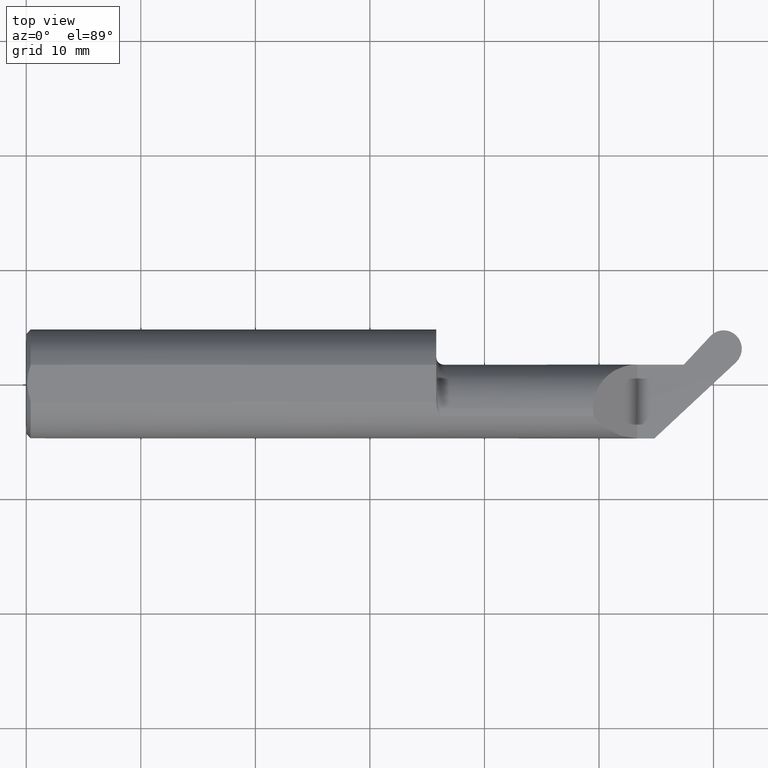
[diagram: clean part render]
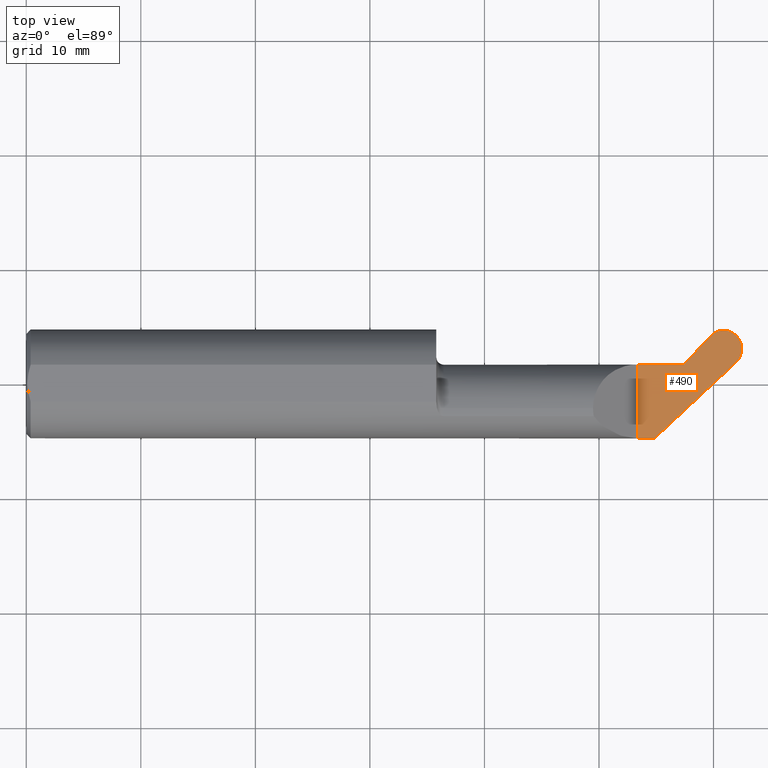
[diagram: same view with one face highlighted and labeled with its STEP entity id]
A machine part, top view. The second image highlights one B-rep face of the part: STEP entity #490.
In plain terms, the highlighted planar face has unit normal (-0, 0, -1).
Its self-contained STEP definition (entity closure, byte-faithful):
#5 = VERTEX_POINT ( 'NONE', #78 ) ;
#63 = EDGE_CURVE ( 'NONE', #293, #5, #909, .T. ) ;
#67 = VECTOR ( 'NONE', #587, 39.37007874015748143 ) ;
#78 = CARTESIAN_POINT ( 'NONE',  ( 2.351841361697363908, 0.1649863844224991882, -4.745349621061712245E-17 ) ) ;
#79 = LINE ( 'NONE', #517, #67 ) ;
#153 = CARTESIAN_POINT ( 'NONE',  ( 2.100000000000000089, 0.06665000000000036173, -4.745349621061712245E-17 ) ) ;
#176 = EDGE_CURVE ( 'NONE', #621, #694, #273, .T. ) ;
#199 = VECTOR ( 'NONE', #863, 39.37007874015748143 ) ;
#205 = CARTESIAN_POINT ( 'NONE',  ( 2.177075908381001401, -0.1705002072932669532, 0.000000000000000000 ) ) ;
#231 = ORIENTED_EDGE ( 'NONE', *, *, #902, .T. ) ;
#233 = CARTESIAN_POINT ( 'NONE',  ( 2.364542468186865420, 0.1761179121964334959, -4.745349621061712245E-17 ) ) ;
#246 = DIRECTION ( 'NONE',  ( -1.000000000000000000, 0.000000000000000000, 0.000000000000000000 ) ) ;
#247 = ORIENTED_EDGE ( 'NONE', *, *, #596, .F. ) ;
#273 = LINE ( 'NONE', #205, #559 ) ;
#280 = CARTESIAN_POINT ( 'NONE',  ( 2.380177281579272108, 0.1829292312331320391, -4.745349621061712245E-17 ) ) ;
#290 = DIRECTION ( 'NONE',  ( 1.000000000000000000, 0.000000000000000000, 0.000000000000000000 ) ) ;
#293 = VERTEX_POINT ( 'NONE', #800 ) ;
#318 = ORIENTED_EDGE ( 'NONE', *, *, #63, .F. ) ;
#324 = PLANE ( 'NONE',  #361 ) ;
#326 = B_SPLINE_CURVE_WITH_KNOTS ( 'NONE', 3,
 ( #488, #920, #571, #720, #787, #560, #852, #432, #415, #411, #484, #641, #705, #343, #280, #233, #519, #738 ),
 .UNSPECIFIED., .F., .F.,
 ( 4, 2, 2, 2, 2, 2, 2, 2, 4 ),
 ( 0.000000000000000000, 0.1250000000000000000, 0.2500000000000000000, 0.3750000000000000000, 0.5000000000000000000, 0.6250000000000000000, 0.7500000000000000000, 0.8750000000000000000, 1.000000000000000000 ),
 .UNSPECIFIED. ) ;
#329 = EDGE_CURVE ( 'NONE', #694, #359, #79, .T. ) ;
#340 = EDGE_LOOP ( 'NONE', ( #609, #231, #318, #430, #247, #779 ) ) ;
#343 = CARTESIAN_POINT ( 'NONE',  ( 2.388375162590306910, 0.1846387617331555209, -4.745349621061712245E-17 ) ) ;
#357 = EDGE_CURVE ( 'NONE', #936, #293, #376, .T. ) ;
#359 = VERTEX_POINT ( 'NONE', #725 ) ;
#361 = AXIS2_PLACEMENT_3D ( 'NONE', #751, #903, #246 ) ;
#376 = LINE ( 'NONE', #672, #515 ) ;
#386 = CARTESIAN_POINT ( 'NONE',  ( 2.118398906614213484, -0.08534999999999998144, -4.745349621061712245E-17 ) ) ;
#411 = CARTESIAN_POINT ( 'NONE',  ( 2.436077202789612706, 0.1712425049043152792, -4.745349621061712245E-17 ) ) ;
#415 = CARTESIAN_POINT ( 'NONE',  ( 2.447829251130620332, 0.1587890767430912564, -4.745349621061712245E-17 ) ) ;
#430 = ORIENTED_EDGE ( 'NONE', *, *, #357, .F. ) ;
#432 = CARTESIAN_POINT ( 'NONE',  ( 2.452253884651042881, 0.1517065649931440829, -4.745349621061712245E-17 ) ) ;
#483 = DIRECTION ( 'NONE',  ( -0.7313537016191661300, -0.6819983600625030284, 0.000000000000000000 ) ) ;
#484 = CARTESIAN_POINT ( 'NONE',  ( 2.429254136609600323, 0.1760530126634087533, -4.745349621061712245E-17 ) ) ;
#485 = CARTESIAN_POINT ( 'NONE',  ( 2.100000000000000089, 0.2000000000000000111, -4.745349621061712245E-17 ) ) ;
#488 = CARTESIAN_POINT ( 'NONE',  ( 2.439363596038780724, 0.07408701835577827244, 0.000000000000000000 ) ) ;
#490 = ADVANCED_FACE ( 'NONE', ( #679 ), #324, .F. ) ;
#515 = VECTOR ( 'NONE', #290, 39.37007874015748143 ) ;
#517 = CARTESIAN_POINT ( 'NONE',  ( 2.500000000000000000, -0.1873499999999999888, -4.745349621061712245E-17 ) ) ;
#519 = CARTESIAN_POINT ( 'NONE',  ( 2.357702963791630246, 0.1712721830990057981, -4.745349621061712862E-17 ) ) ;
#559 = VECTOR ( 'NONE', #483, 39.37007874015748854 ) ;
#560 = CARTESIAN_POINT ( 'NONE',  ( 2.459698995719804326, 0.1274912164744850529, -4.745349621061712245E-17 ) ) ;
#568 = CARTESIAN_POINT ( 'NONE',  ( 2.159006717911899020, -0.1873499999999999055, 5.335129386078614807E-17 ) ) ;
#571 = CARTESIAN_POINT ( 'NONE',  ( 2.450468201264037749, 0.08677472222595788987, -4.745349621061713478E-17 ) ) ;
#587 = DIRECTION ( 'NONE',  ( -1.000000000000000000, -0.000000000000000000, -0.000000000000000000 ) ) ;
#596 = EDGE_CURVE ( 'NONE', #359, #936, #916, .T. ) ;
#609 = ORIENTED_EDGE ( 'NONE', *, *, #176, .F. ) ;
#621 = VERTEX_POINT ( 'NONE', #627 ) ;
#622 = DIRECTION ( 'NONE',  ( 0.6819983600625183495, 0.7313537016191519191, 0.000000000000000000 ) ) ;
#627 = CARTESIAN_POINT ( 'NONE',  ( 2.439363596038780724, 0.07408701835577827244, 0.000000000000000000 ) ) ;
#641 = CARTESIAN_POINT ( 'NONE',  ( 2.413596029793473097, 0.1828931149090058939, -4.745349621061712245E-17 ) ) ;
#672 = CARTESIAN_POINT ( 'NONE',  ( 1.409400000000000652, 0.06665000000000036173, -4.745349621061712245E-17 ) ) ;
#679 = FACE_OUTER_BOUND ( 'NONE', #340, .T. ) ;
#694 = VERTEX_POINT ( 'NONE', #568 ) ;
#705 = CARTESIAN_POINT ( 'NONE',  ( 2.405404995260256751, 0.1846102902016808212, -4.745349621061712245E-17 ) ) ;
#720 = CARTESIAN_POINT ( 'NONE',  ( 2.457387751488102623, 0.1022804540570088350, -4.745349621061712245E-17 ) ) ;
#725 = CARTESIAN_POINT ( 'NONE',  ( 2.100000000000000089, -0.1873499999999999888, -4.745349621061712245E-17 ) ) ;
#738 = CARTESIAN_POINT ( 'NONE',  ( 2.351841361697363908, 0.1649863844224991882, -4.745349621061712245E-17 ) ) ;
#751 = CARTESIAN_POINT ( 'NONE',  ( 2.100000000000000089, 0.2000000000000000111, -4.745349621061712245E-17 ) ) ;
#779 = ORIENTED_EDGE ( 'NONE', *, *, #329, .F. ) ;
#787 = CARTESIAN_POINT ( 'NONE',  ( 2.459235749946377503, 0.1104912603984970348, -4.745349621061712245E-17 ) ) ;
#795 = VECTOR ( 'NONE', #622, 39.37007874015748143 ) ;
#800 = CARTESIAN_POINT ( 'NONE',  ( 2.260141199707143667, 0.06665000000000145808, 7.717470582101543050E-15 ) ) ;
#852 = CARTESIAN_POINT ( 'NONE',  ( 2.458310647166364493, 0.1357130878971087029, -4.745349621061712245E-17 ) ) ;
#863 = DIRECTION ( 'NONE',  ( -0.000000000000000000, 1.000000000000000000, -0.000000000000000000 ) ) ;
#902 = EDGE_CURVE ( 'NONE', #621, #5, #326, .T. ) ;
#903 = DIRECTION ( 'NONE',  ( -0.000000000000000000, 0.000000000000000000, -1.000000000000000000 ) ) ;
#909 = LINE ( 'NONE', #386, #795 ) ;
#916 = LINE ( 'NONE', #485, #199 ) ;
#920 = CARTESIAN_POINT ( 'NONE',  ( 2.445578144260159181, 0.07988217832574323607, -4.745349621061712245E-17 ) ) ;
#936 = VERTEX_POINT ( 'NONE', #153 ) ;